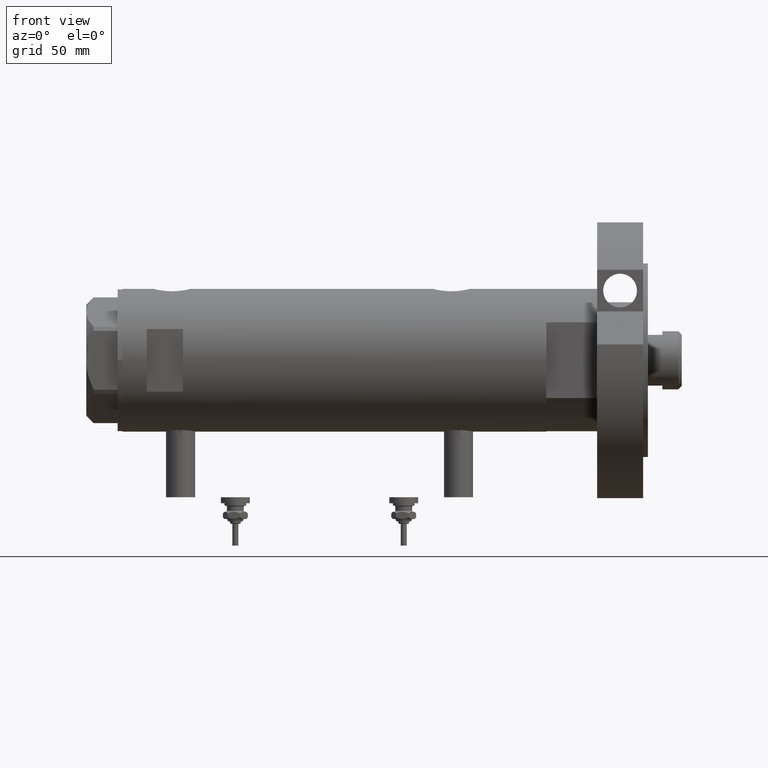
[diagram: clean part render]
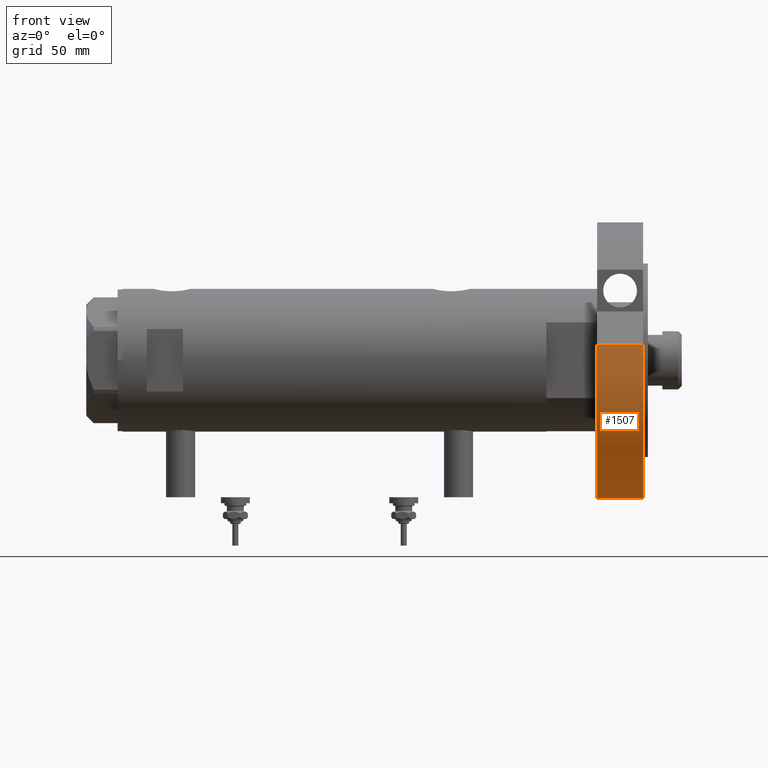
[diagram: same view with one face highlighted and labeled with its STEP entity id]
A machine part, front view. The second image highlights one B-rep face of the part: STEP entity #1507.
In plain terms, the highlighted cylindrical surface (partial cylindrical patch) has radius 57 mm, axis along (-1, -0, 0).
Its self-contained STEP definition (entity closure, byte-faithful):
#276 = CYLINDRICAL_SURFACE ( 'NONE', #7186, 57.00000000000000000 ) ;
#346 = DIRECTION ( 'NONE',  ( -0.000000000000000000, -0.000000000000000000, -1.000000000000000000 ) ) ;
#365 = DIRECTION ( 'NONE',  ( 1.000000000000000000, 0.000000000000000000, 0.000000000000000000 ) ) ;
#414 = DIRECTION ( 'NONE',  ( -0.000000000000000000, -0.000000000000000000, 1.000000000000000000 ) ) ;
#449 = CARTESIAN_POINT ( 'NONE',  ( 6.569366352211361004, 56.62016801220598694, 0.000000000000000000 ) ) ;
#557 = CARTESIAN_POINT ( 'NONE',  ( -57.00000000000000000, 0.000000000000000000, 0.000000000000000000 ) ) ;
#895 = LINE ( 'NONE', #5003, #6481 ) ;
#954 = ORIENTED_EDGE ( 'NONE', *, *, #6478, .F. ) ;
#1006 = CARTESIAN_POINT ( 'NONE',  ( 6.569366352211361004, 56.62016801220598694, 19.00000000000000000 ) ) ;
#1507 = ADVANCED_FACE ( 'NONE', ( #4256 ), #276, .T. ) ;
#1548 = EDGE_CURVE ( 'NONE', #3444, #5185, #3896, .T. ) ;
#1585 = DIRECTION ( 'NONE',  ( 0.000000000000000000, 0.000000000000000000, 1.000000000000000000 ) ) ;
#1857 = VERTEX_POINT ( 'NONE', #4012 ) ;
#2009 = VECTOR ( 'NONE', #414, 1000.000000000000000 ) ;
#2167 = LINE ( 'NONE', #449, #2009 ) ;
#2792 = EDGE_CURVE ( 'NONE', #1857, #4013, #5859, .T. ) ;
#2871 = CARTESIAN_POINT ( 'NONE',  ( 0.000000000000000000, 0.000000000000000000, 19.00000000000000000 ) ) ;
#3444 = VERTEX_POINT ( 'NONE', #1006 ) ;
#3765 = ORIENTED_EDGE ( 'NONE', *, *, #4773, .F. ) ;
#3896 = CIRCLE ( 'NONE', #5840, 57.00000000000000000 ) ;
#4012 = CARTESIAN_POINT ( 'NONE',  ( 6.569366352211361004, 56.62016801220598694, 0.000000000000000000 ) ) ;
#4013 = VERTEX_POINT ( 'NONE', #557 ) ;
#4256 = FACE_OUTER_BOUND ( 'NONE', #5477, .T. ) ;
#4289 = DIRECTION ( 'NONE',  ( 1.000000000000000000, 0.000000000000000000, 0.000000000000000000 ) ) ;
#4292 = CARTESIAN_POINT ( 'NONE',  ( 0.000000000000000000, 0.000000000000000000, 19.00000000000000000 ) ) ;
#4386 = AXIS2_PLACEMENT_3D ( 'NONE', #5626, #1585, #4289 ) ;
#4773 = EDGE_CURVE ( 'NONE', #5185, #4013, #895, .T. ) ;
#4936 = DIRECTION ( 'NONE',  ( -0.000000000000000000, -0.000000000000000000, -1.000000000000000000 ) ) ;
#5003 = CARTESIAN_POINT ( 'NONE',  ( -57.00000000000000000, 0.000000000000000000, 19.00000000000000000 ) ) ;
#5185 = VERTEX_POINT ( 'NONE', #6604 ) ;
#5477 = EDGE_LOOP ( 'NONE', ( #3765, #5494, #954, #6817 ) ) ;
#5494 = ORIENTED_EDGE ( 'NONE', *, *, #1548, .F. ) ;
#5626 = CARTESIAN_POINT ( 'NONE',  ( 0.000000000000000000, 0.000000000000000000, 0.000000000000000000 ) ) ;
#5840 = AXIS2_PLACEMENT_3D ( 'NONE', #2871, #6204, #365 ) ;
#5859 = CIRCLE ( 'NONE', #4386, 57.00000000000000000 ) ;
#6204 = DIRECTION ( 'NONE',  ( 0.000000000000000000, 0.000000000000000000, 1.000000000000000000 ) ) ;
#6478 = EDGE_CURVE ( 'NONE', #1857, #3444, #2167, .T. ) ;
#6481 = VECTOR ( 'NONE', #346, 1000.000000000000000 ) ;
#6604 = CARTESIAN_POINT ( 'NONE',  ( -57.00000000000000000, 0.000000000000000000, 19.00000000000000000 ) ) ;
#6628 = DIRECTION ( 'NONE',  ( -1.000000000000000000, 0.000000000000000000, 0.000000000000000000 ) ) ;
#6817 = ORIENTED_EDGE ( 'NONE', *, *, #2792, .T. ) ;
#7186 = AXIS2_PLACEMENT_3D ( 'NONE', #4292, #4936, #6628 ) ;